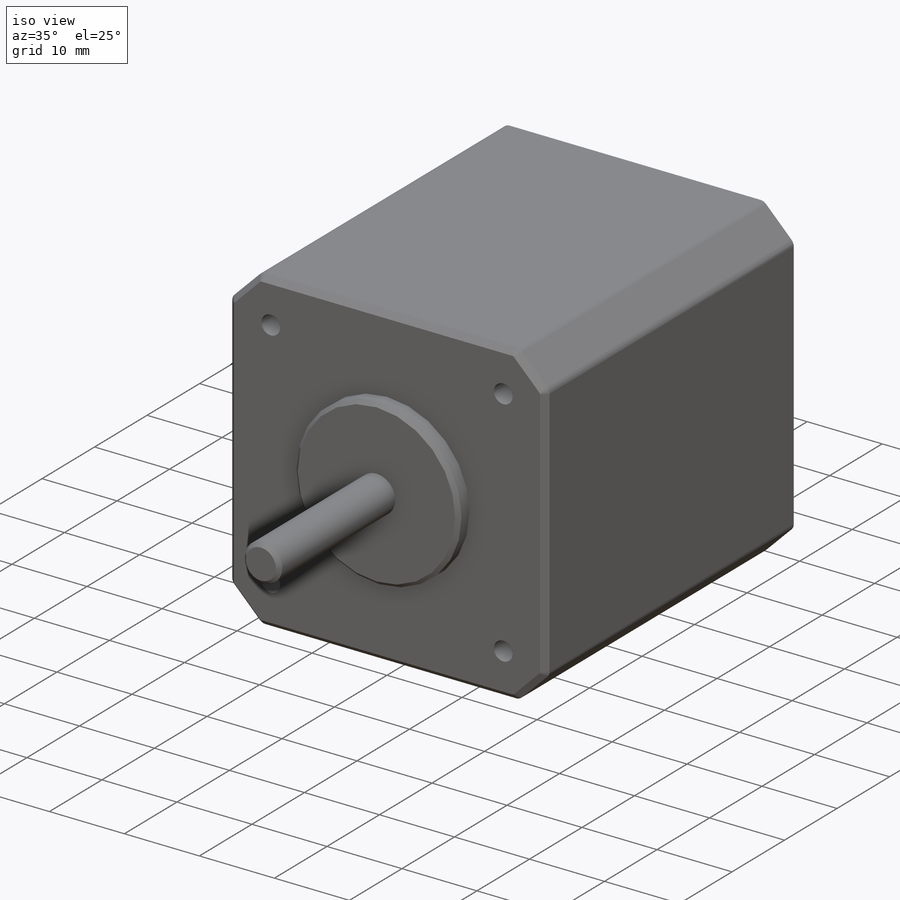
[diagram: iso view]
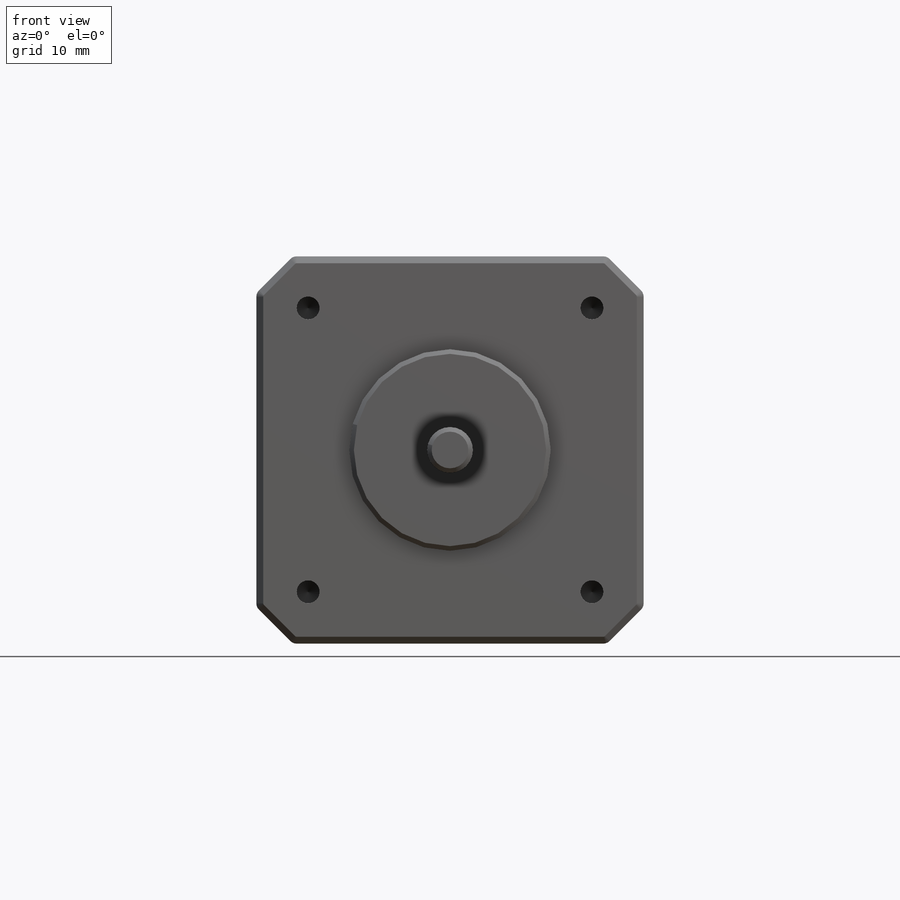
[diagram: front view]
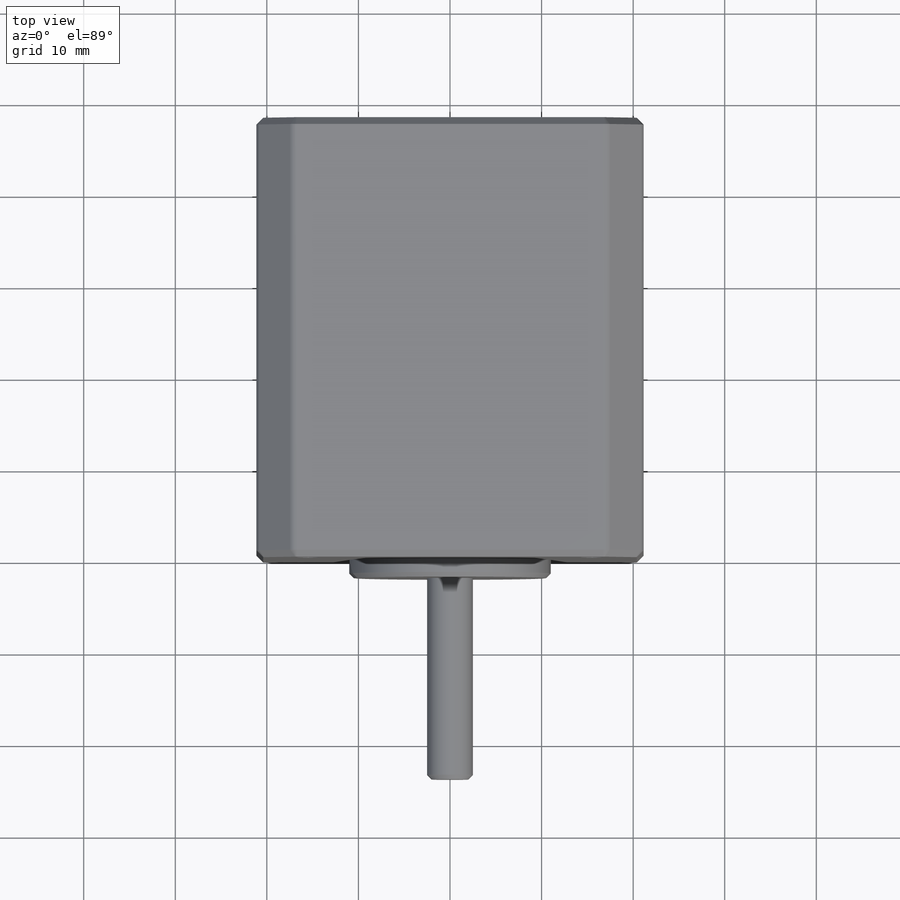
[diagram: top view]
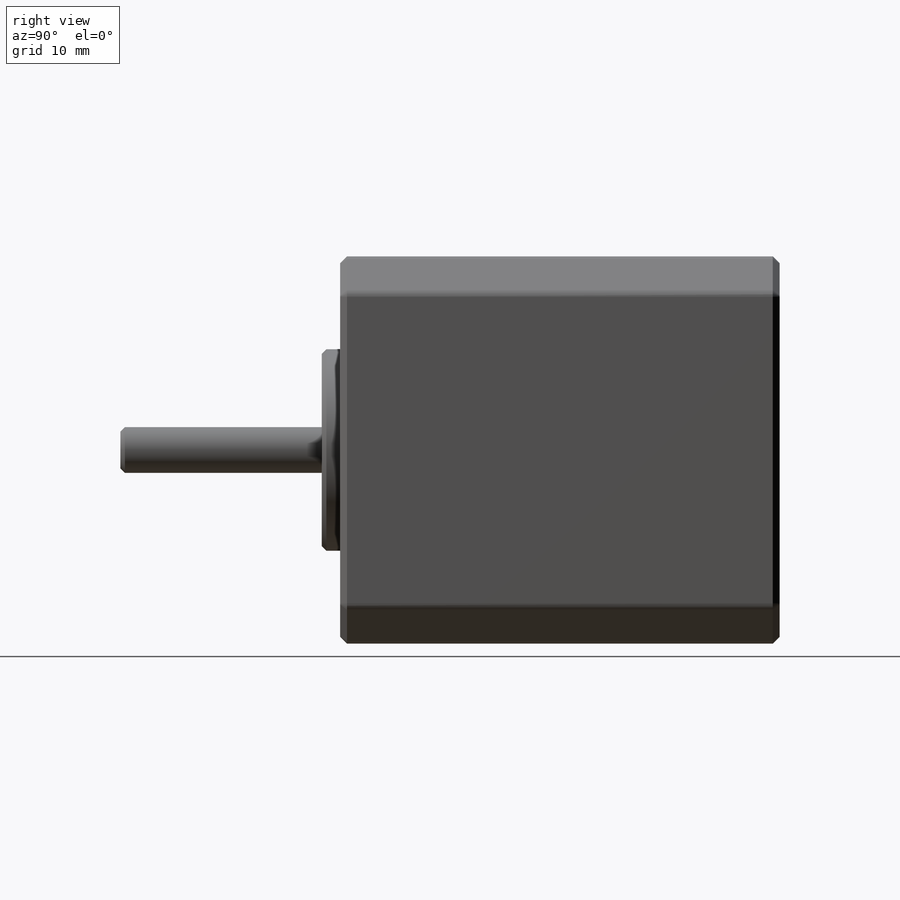
[diagram: right view]
SOLIDWORKS PART (.sldprt)
format: sldprt  version: not decoded by parser v0  size: 404,480 bytes
history: native  units: mm
features: sketch x5, chamfer x5, thread x4, plane x3, extrude x3, material x1, hole x1, fillet x1 (+10 scaffold rows collapsed)
feature tree (33):
  scaffold x10  (default folders/planes/origin — collapsed)
  material  "Material <not specified>"
  plane  "Спереди"
  plane  "Сверху"
  plane  "Справа"
  sketch  "Sketch1"  dims[D1=31.0mm]
  extrude  "Boss-Extrude1"  Depth=48mm
  hole  "M3x0.5 Tapped Hole1"  Diameter=2.5mm Depth=6mm
  sketch  "Sketch5"
  sketch  "Sketch4"  dims[hole-wizard template sketch: 50 standard entries collapsed; hole parameters above]
  thread  "Hole Thread1"  Diameter=4.5mm  [1 undecoded]
  thread  "Hole Thread2"  Diameter=4.5mm  [1 undecoded]
  thread  "Hole Thread3"  Diameter=4.5mm  [1 undecoded]
  thread  "Hole Thread4"  Diameter=4.5mm  [1 undecoded]
  chamfer  "Chamfer1"  Distance=4mm Angle=45deg
  fillet  "Fillet1"  Radius=1mm
  sketch  "Sketch6"  dims[D1=~12.416828mm]
  extrude  "Boss-Extrude2"  Depth=2mm
  sketch  "Sketch7"  dims[D1=~2.778655mm]
  extrude  "Boss-Extrude3"  Depth=22mm
  chamfer  "Chamfer2"  Distance=0.5mm Angle=45deg
  chamfer  "Chamfer3"  Distance=0.75mm Angle=45deg
  chamfer  "Chamfer4"  Distance=0.5mm Angle=45deg
  chamfer  "Chamfer6"  Distance=0.75mm Angle=45deg
decode coverage: 18 of 19 modeling features carry decoded parameters
note: ~ marks probable driven/reference dimensions
note: 4 parameter values undecoded
note: suppression state not decoded; provenance and decode notes live in map.json
